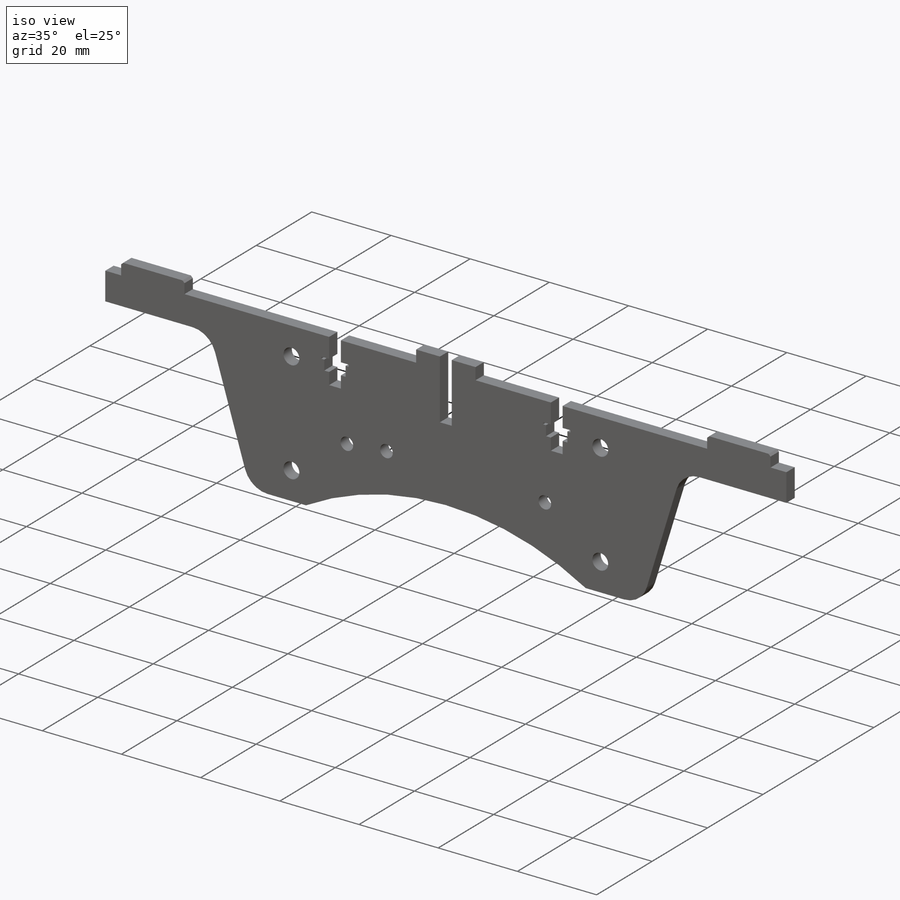
[diagram: iso view]
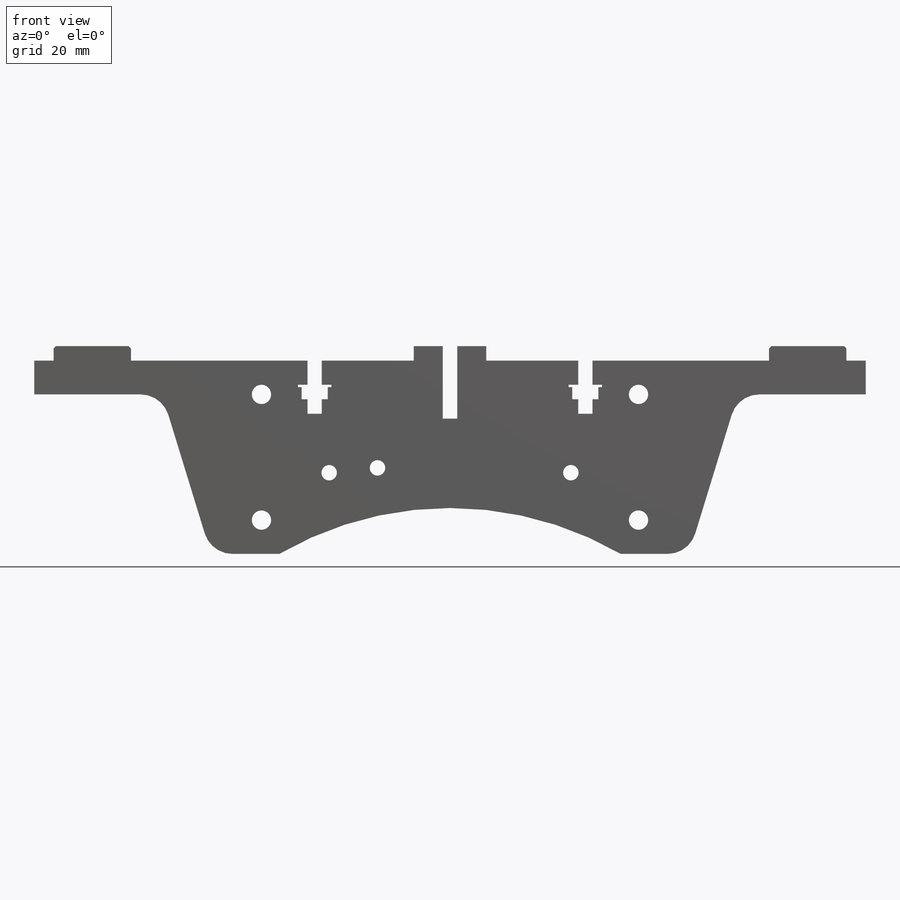
[diagram: front view]
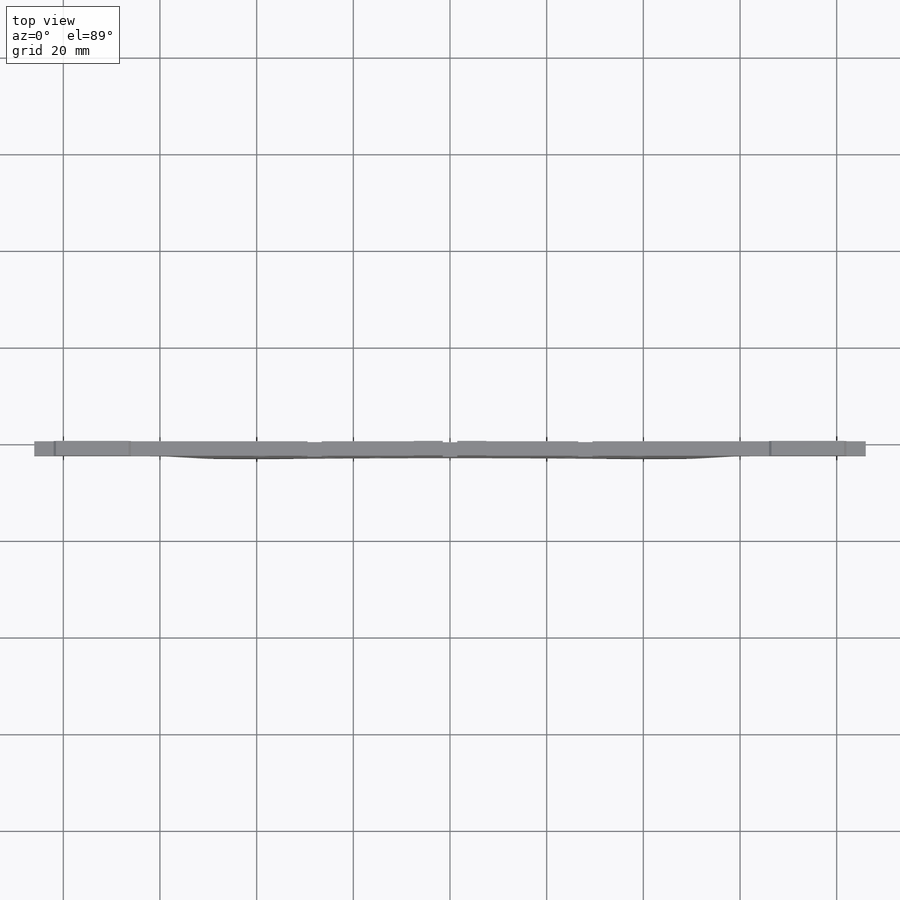
[diagram: top view]
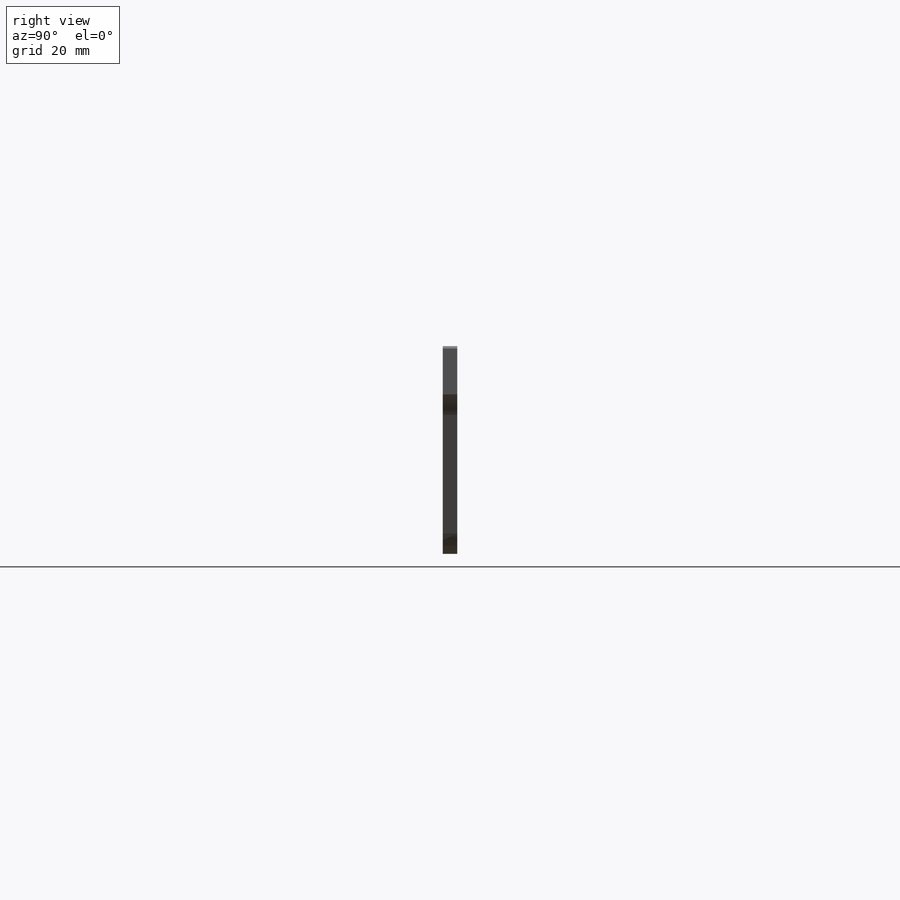
[diagram: right view]
SOLIDWORKS PART (.sldprt)
format: sldprt  version: not decoded by parser v0  size: 510,976 bytes
history: native  units: mm
features: sketch x4, cut_extrude x3, material x1, extrude x1, mirror x1, chamfer x1 (+13 scaffold rows collapsed)
feature tree (24):
  scaffold x13  (default folders/planes/origin — collapsed)
  material  "Oak"
  sketch  "Sketch1"  dims[c1.D8=4.5mm c1.D9=8.0mm c1.D15=6.0mm c1.D17=6.0mm c1.D1=16.0mm c1.D2=65.0mm c1.D3=100.0mm c1.D4=10.0mm c1.D5=15.0mm c1.D6=40.0mm c1.D7=5.0mm c2.D5=2.0mm c2.D6=36.0mm c2.D3=76.0mm c2.D8=13.0mm c2.D10=6.0mm c2.D11=11.5mm c2.D12=8.0mm c2.D13=6.0mm c2.D14=~13.373213mm c2.D9=3.0mm c3.D12=6.0mm c3.D14=74.0mm c3.D15=10.0mm c3.D16=19.0mm c3.D17=7.0mm c3.D18=7.0mm c4.D14=106.0mm c4.D5=15.0mm c4.D6=53.0mm c4.D7=53.0mm c4.D12=20.0mm c4.D15=14.0mm c4.D16=20.0mm c5.D6=7.0mm c5.D7=21.0mm c5.D8=7.0mm c5.D9=~1.002159mm c5.D3=86.0mm c5.D4=4.0mm c5.D11=20.0mm c6.D6=12.0mm c6.D9=90.0mm c6.D14=128.0mm c7.D9=0.2mm]
  extrude  "Boss-Extrude1"  Depth=6mm
  sketch  "Sketch2"  dims[c1.D2=4.0mm c1.D3=3.2mm c1.D5=3.2mm c1.D1=39.0mm c2.D3=4.0mm c2.D4=3.5mm c2.D5=16.0mm c2.D6=15.0mm c3.D3=11.0mm c3.D6=15.0mm c3.D5=19.5mm c3.D7=16.0mm c3.D4=19.0mm c4.D5=5.0mm c4.D3=6.5mm c4.D4=13.0mm c4.D8=0.5mm c4.D9=2.5mm c4.D10=1.0mm c4.D11=10.0mm c4.D12=2.96mm c4.D13=7.0mm c4.D14=5.5mm c4.D15=15.0mm c4.D16=13.0mm c5.D3=3.0mm c5.D6=50.0mm c5.D8=3.2mm c6.D3=20.0mm c6.D9=12.0mm]
  cut_extrude  "Cut-Extrude1"  [1 undecoded]
  mirror  "Mirror1"
  chamfer  "Chamfer1"  Distance=0.5mm Angle=45deg
  sketch  "Sketch4"  dims[D1=0.5mm D2=2.5mm D3=3.0mm D4=11.0mm D5=2.96mm D6=6.9mm D7=5.4mm D8=28.0mm]
  cut_extrude  "Cut-Extrude2"  [1 undecoded]
  sketch  "Sketch5"  dims[c1.D1=10.0mm c1.D2=1.0mm c2.D1=10.0mm]
  cut_extrude  "Cut-Extrude3"  [1 undecoded]
decode coverage: 6 of 10 modeling features carry decoded parameters
note: ~ marks probable driven/reference dimensions
note: 3 parameter values undecoded
summary: no parameter record found for 3 features
note: suppression state not decoded; provenance and decode notes live in map.json
